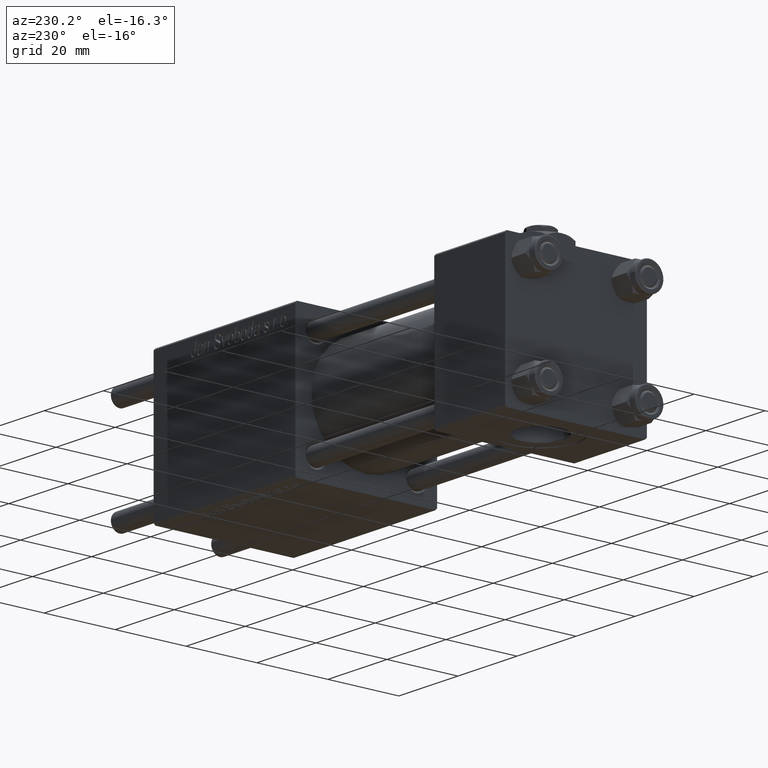
[diagram: clean part render]
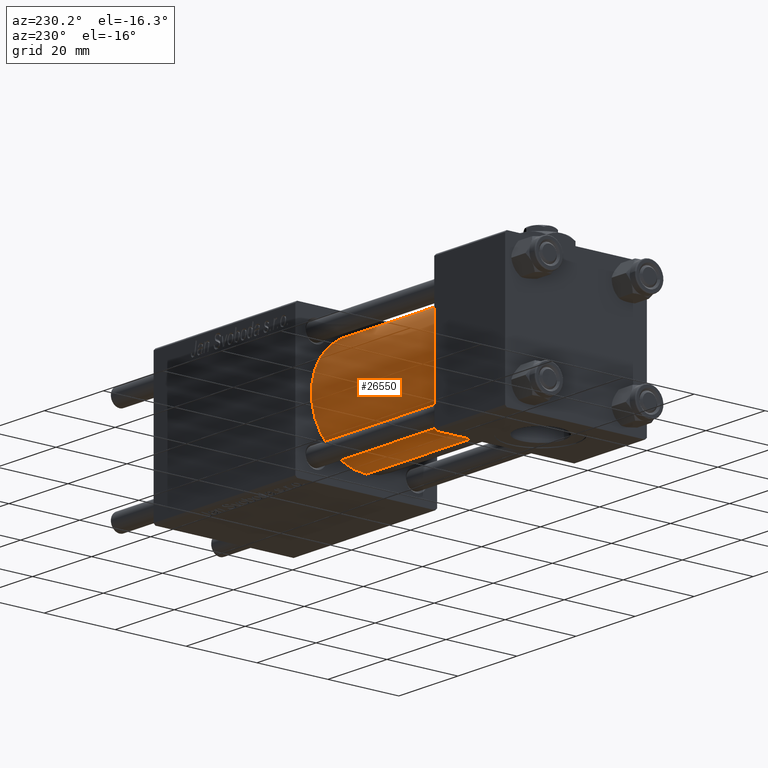
[diagram: same view with one face highlighted and labeled with its STEP entity id]
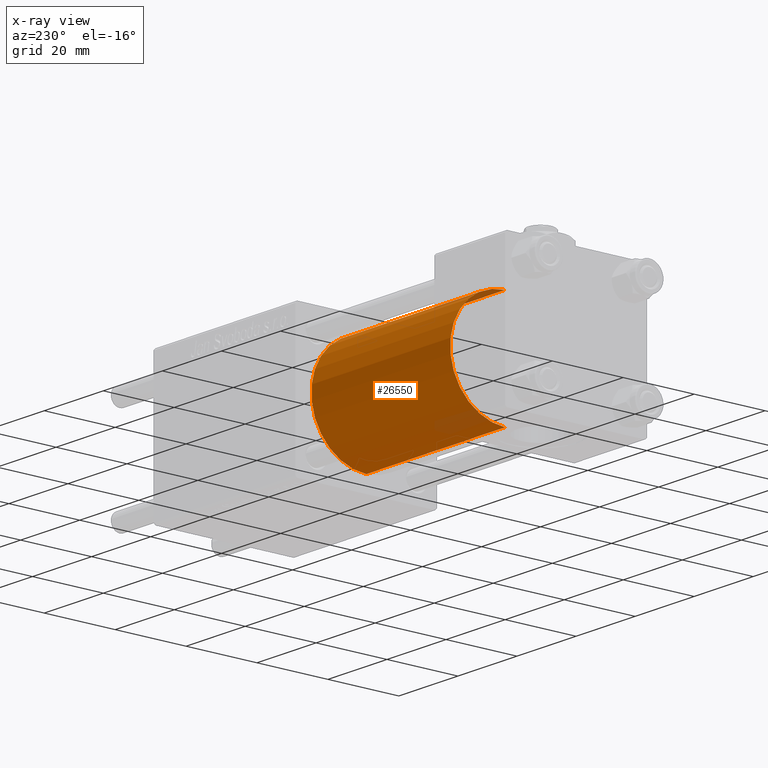
[diagram: x-ray of the same camera — body ghosted, the highlighted face saturated]
A machine part, auxiliary view. The second image highlights one B-rep face of the part: STEP entity #26550.
The next image is the same camera in x-ray: the body ghosted, the highlighted face saturated — about 5% of this face is hidden behind the body in this view.
In plain terms, the highlighted cylindrical surface (partial cylindrical patch) has radius 15.5 mm, axis along (-1, -0, -0).
Its self-contained STEP definition (entity closure, byte-faithful):
#512 = VECTOR ( 'NONE', #34199, 1000.000000000000000 ) ;
#516 = DIRECTION ( 'NONE',  ( 0.000000000000000000, 0.000000000000000000, 1.000000000000000000 ) ) ;
#4177 = CARTESIAN_POINT ( 'NONE',  ( 71.00000000000001421, -2.602085213965210642E-15, 0.000000000000000000 ) ) ;
#7945 = CARTESIAN_POINT ( 'NONE',  ( 24.00000000000000000, -7.038826752868131828E-16, -15.50000000000000000 ) ) ;
#9464 = ORIENTED_EDGE ( 'NONE', *, *, #53154, .T. ) ;
#9683 = CIRCLE ( 'NONE', #42744, 15.50000000000000000 ) ;
#10852 = DIRECTION ( 'NONE',  ( 0.000000000000000000, 0.000000000000000000, -1.000000000000000000 ) ) ;
#12035 = DIRECTION ( 'NONE',  ( -1.000000000000000000, -0.000000000000000000, -0.000000000000000000 ) ) ;
#12314 = CARTESIAN_POINT ( 'NONE',  ( 71.00000000000001421, -7.038826752868131828E-16, -15.50000000000000000 ) ) ;
#12819 = VERTEX_POINT ( 'NONE', #16601 ) ;
#15325 = AXIS2_PLACEMENT_3D ( 'NONE', #36865, #28566, #516 ) ;
#15601 = CARTESIAN_POINT ( 'NONE',  ( 71.00000000000001421, -2.602085213965210642E-15, 0.000000000000000000 ) ) ;
#16023 = ORIENTED_EDGE ( 'NONE', *, *, #28600, .F. ) ;
#16601 = CARTESIAN_POINT ( 'NONE',  ( 24.00000000000000000, -2.602085213965210642E-15, 15.50000000000000000 ) ) ;
#24716 = AXIS2_PLACEMENT_3D ( 'NONE', #15601, #56682, #31531 ) ;
#25319 = EDGE_LOOP ( 'NONE', ( #16023, #45949, #9464, #38181 ) ) ;
#25460 = CARTESIAN_POINT ( 'NONE',  ( 71.00000000000001421, -2.602085213965210642E-15, 15.50000000000000000 ) ) ;
#26432 = VERTEX_POINT ( 'NONE', #12314 ) ;
#26550 = ADVANCED_FACE ( 'NONE', ( #56109 ), #38659, .T. ) ;
#28566 = DIRECTION ( 'NONE',  ( 1.000000000000000000, 0.000000000000000000, 0.000000000000000000 ) ) ;
#28600 = EDGE_CURVE ( 'NONE', #26432, #48399, #9683, .T. ) ;
#29751 = VERTEX_POINT ( 'NONE', #7945 ) ;
#29767 = LINE ( 'NONE', #33895, #512 ) ;
#30430 = CIRCLE ( 'NONE', #15325, 15.50000000000000000 ) ;
#31531 = DIRECTION ( 'NONE',  ( 0.000000000000000000, 0.000000000000000000, 1.000000000000000000 ) ) ;
#33895 = CARTESIAN_POINT ( 'NONE',  ( 71.00000000000001421, -2.602085213965210642E-15, 15.50000000000000000 ) ) ;
#34199 = DIRECTION ( 'NONE',  ( -1.000000000000000000, -0.000000000000000000, -0.000000000000000000 ) ) ;
#34821 = VECTOR ( 'NONE', #12035, 1000.000000000000000 ) ;
#35879 = EDGE_CURVE ( 'NONE', #48399, #12819, #29767, .T. ) ;
#36865 = CARTESIAN_POINT ( 'NONE',  ( 24.00000000000000000, -2.602085213965210642E-15, 0.000000000000000000 ) ) ;
#38181 = ORIENTED_EDGE ( 'NONE', *, *, #35879, .F. ) ;
#38659 = CYLINDRICAL_SURFACE ( 'NONE', #24716, 15.50000000000000000 ) ;
#41914 = DIRECTION ( 'NONE',  ( 1.000000000000000000, 0.000000000000000000, 0.000000000000000000 ) ) ;
#42744 = AXIS2_PLACEMENT_3D ( 'NONE', #4177, #41914, #10852 ) ;
#43536 = EDGE_CURVE ( 'NONE', #26432, #29751, #51969, .T. ) ;
#45949 = ORIENTED_EDGE ( 'NONE', *, *, #43536, .T. ) ;
#46959 = CARTESIAN_POINT ( 'NONE',  ( 71.00000000000001421, -7.038826752868131828E-16, -15.50000000000000000 ) ) ;
#48399 = VERTEX_POINT ( 'NONE', #25460 ) ;
#51969 = LINE ( 'NONE', #46959, #34821 ) ;
#53154 = EDGE_CURVE ( 'NONE', #29751, #12819, #30430, .T. ) ;
#56109 = FACE_OUTER_BOUND ( 'NONE', #25319, .T. ) ;
#56682 = DIRECTION ( 'NONE',  ( -1.000000000000000000, -0.000000000000000000, -0.000000000000000000 ) ) ;